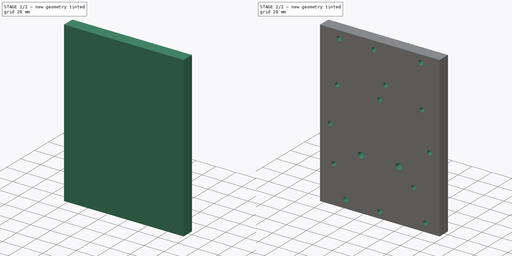
[diagram: build sequence overview — one tinted view per stage of 2, left to right]
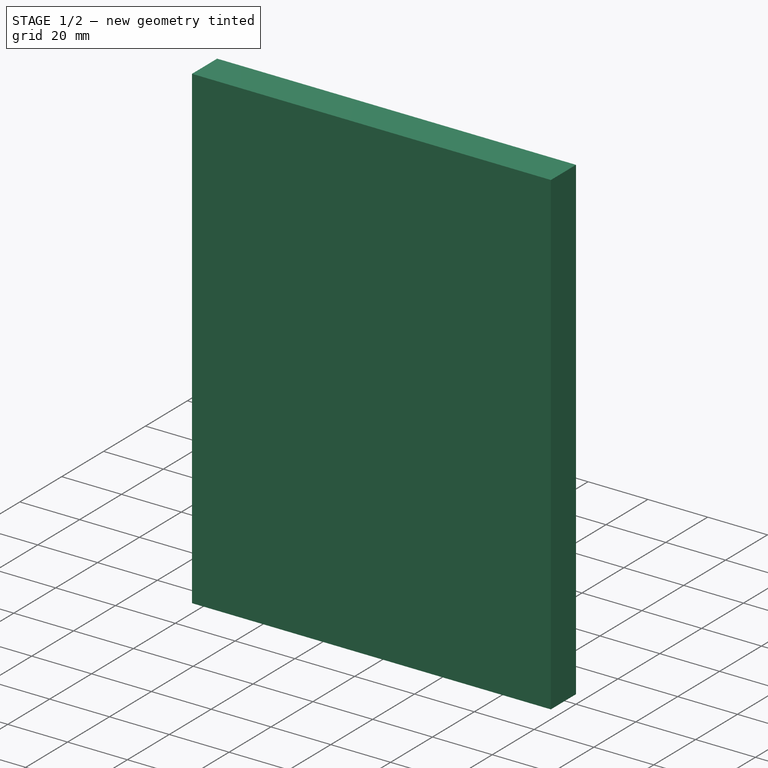
[diagram: stage 1 of 2 — iso view after this stage's code; geometry added in this stage tinted green]
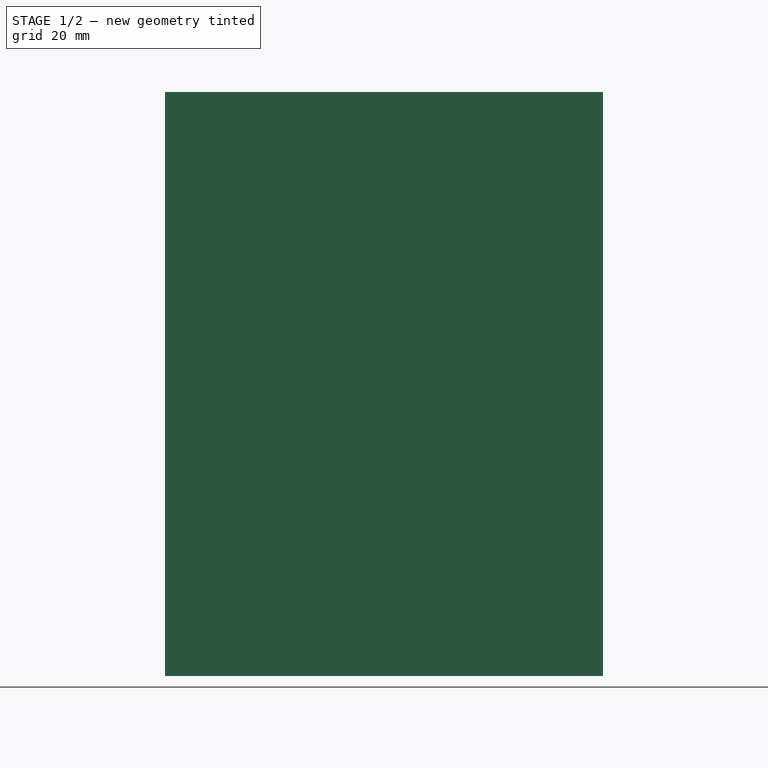
[diagram: stage 1 of 2 — front view after this stage's code; geometry added in this stage tinted green]
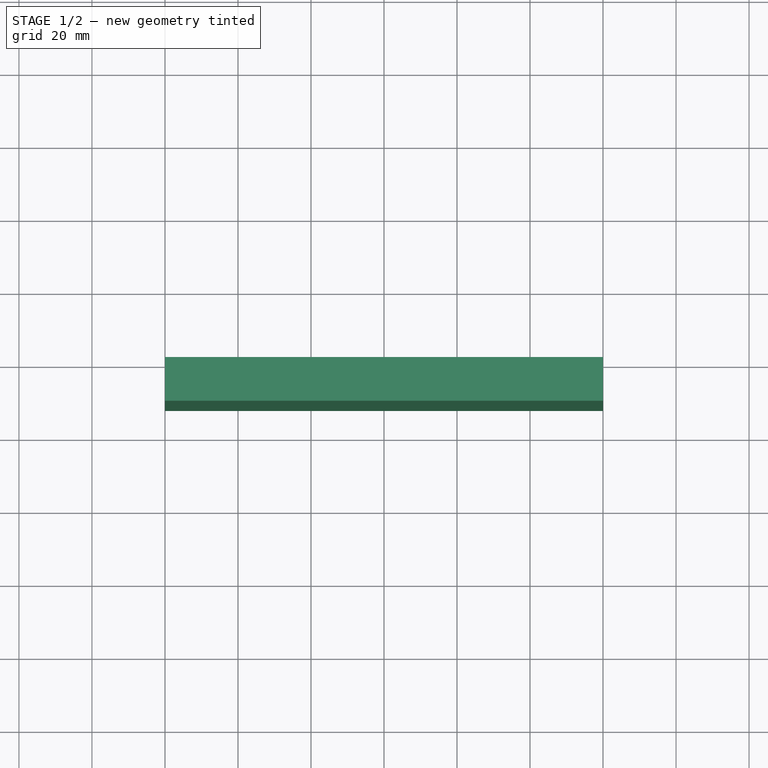
[diagram: stage 1 of 2 — top view after this stage's code; geometry added in this stage tinted green]
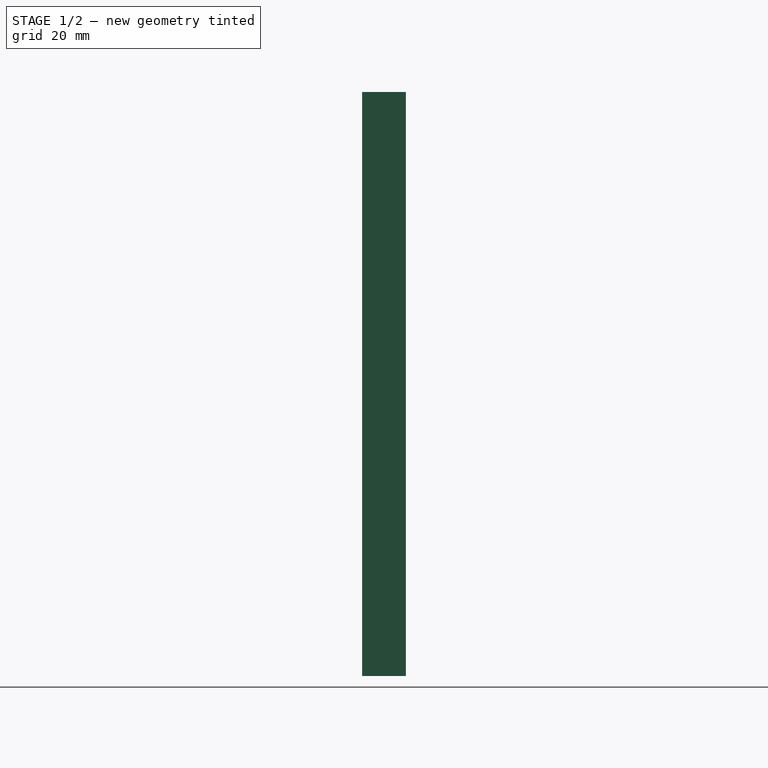
[diagram: stage 1 of 2 — right view after this stage's code; geometry added in this stage tinted green]
FCSTD DOCUMENT  (FreeCAD 0.15R4671 (Git))
Label: Tisch X-Achse - Rueckwand
License: All rights reserved
LicenseURL: http://de.wikipedia.org/wiki/Alle_Rechte_vorbehalten
objects: Drawing::FeatureView×24, Sketcher::SketchObject×2, Drawing::FeatureViewPart×2, Drawing::FeaturePage×2, PartDesign::Pad×1, PartDesign::Pocket×1
note: 6 computed .brp shape members not serialized (recipe doc carries the construction recipe); baked Part::Feature solids carry a one-line shape summary decoded from their .brp

FEATURE [Sketcher::SketchObject] Sketch
  Placement = pos=(0,0,0) rot=(1,0,0;1.5708rad)
  sketch-geometry (4):
    g0: LineSegment StartX=-60 StartY=160 StartZ=0 EndX=60 EndY=160 EndZ=0
    g1: LineSegment StartX=60 StartY=160 StartZ=0 EndX=60 EndY=0 EndZ=0
    g2: LineSegment StartX=60 StartY=0 StartZ=0 EndX=-60 EndY=0 EndZ=0
    g3: LineSegment StartX=-60 StartY=0 StartZ=0 EndX=-60 EndY=160 EndZ=0
  constraints (12):
    c: Coincident(g0,g1)
    c: Coincident(g1,g2)
    c: Coincident(g2,g3)
    c: Coincident(g3,g0)
    c: Horizontal(g0)
    c: Horizontal(g2)
    c: Vertical(g1)
    c: Vertical(g3)
    c: Symmetric(g0,g0,g-2)
    c: DistanceY(g1) = -160
    c: DistanceX(g0) = 120
    c: PointOnObject(g-1,g2)
FEATURE [PartDesign::Pad] Pad
  Length = 12
  Length2 = 100
  Placement = pos=(0,0,0) rot=(1,0,0;1.5708rad)
  Sketch = -> Sketch
  Type = 0
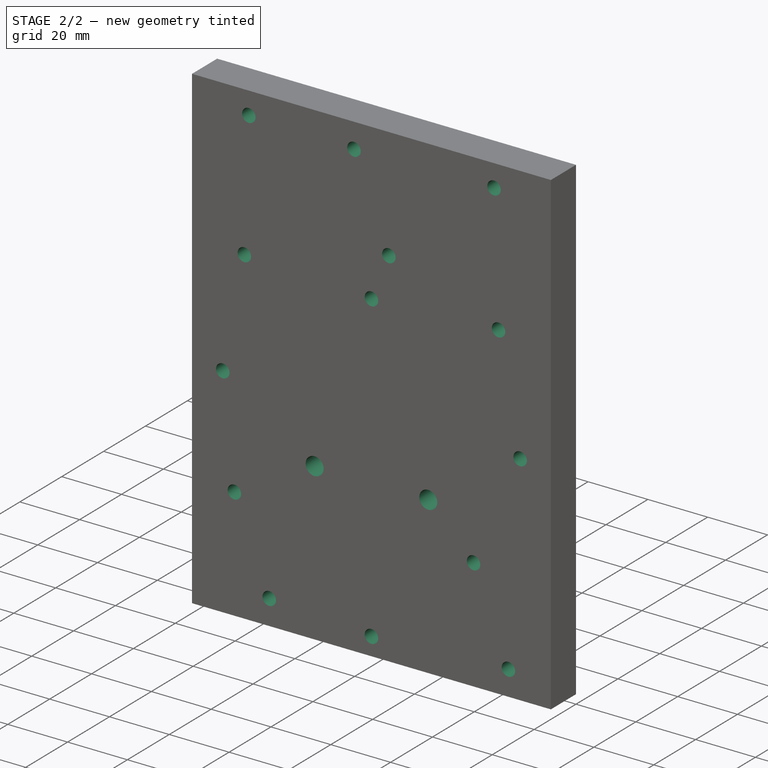
[diagram: stage 2 of 2 — iso view after this stage's code; geometry added in this stage tinted green]
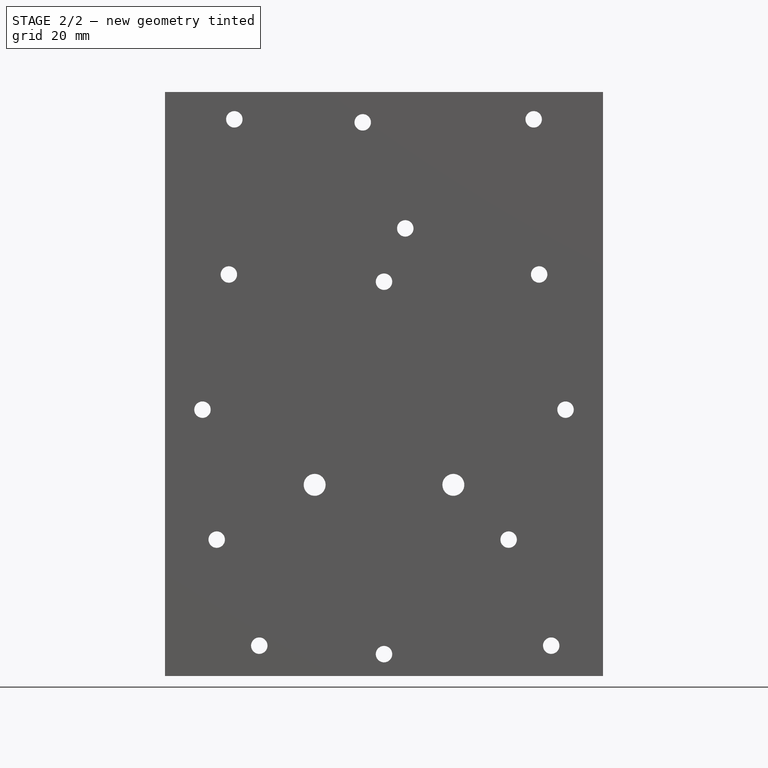
[diagram: stage 2 of 2 — front view after this stage's code; geometry added in this stage tinted green]
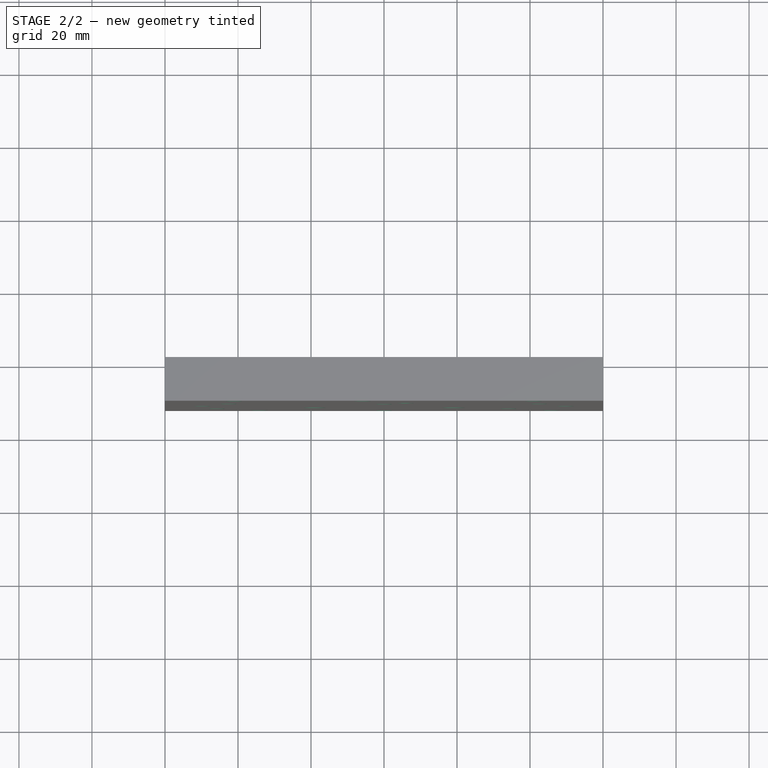
[diagram: stage 2 of 2 — top view after this stage's code; geometry added in this stage tinted green]
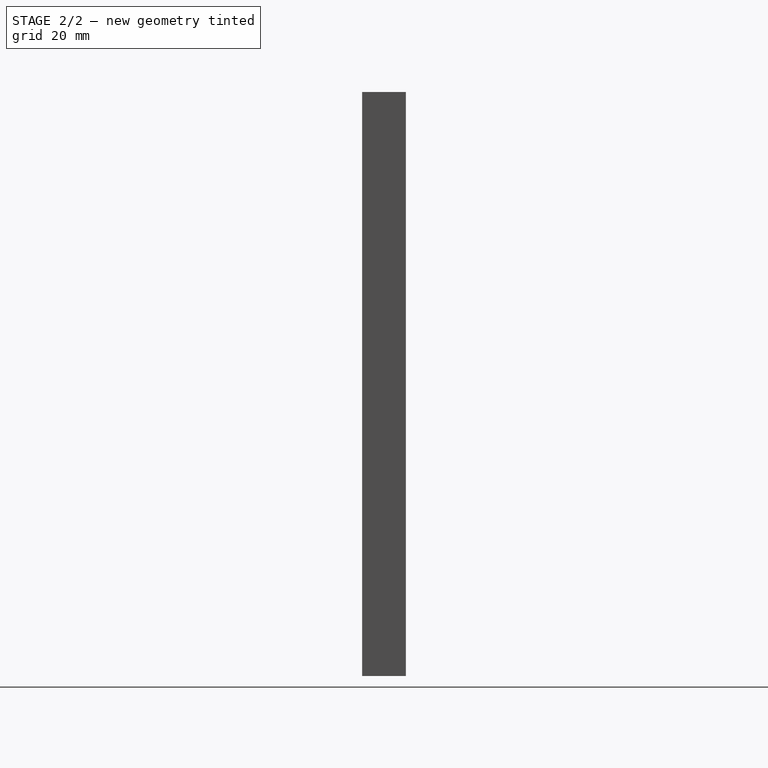
[diagram: stage 2 of 2 — right view after this stage's code; geometry added in this stage tinted green]
FEATURE [Sketcher::SketchObject] Sketch001
  ExternalGeometry = -> [Pad]
  Placement = pos=(0,-12,0) rot=(1,0,0;1.5708rad)
  Support = -> Pad [Face6]
  sketch-geometry (25):
    g0: LineSegment [constr] StartX=-45.83 StartY=37.375 StartZ=0 EndX=34.144 EndY=37.375 EndZ=0
    g1: LineSegment [constr] StartX=34.144 StartY=37.375 StartZ=0 EndX=45.804 EndY=8.325 EndZ=0
    g2: LineSegment [constr] StartX=45.804 StartY=8.325 StartZ=0 EndX=-34.17 EndY=8.325 EndZ=0
    g3: LineSegment [constr] StartX=-34.17 StartY=8.325 StartZ=0 EndX=-45.83 EndY=37.375 EndZ=0
    g4: Circle CenterX=-45.83 CenterY=37.375 CenterZ=0 NormalX=0 NormalY=0 NormalZ=1 Radius=2.25
    g5: Circle CenterX=-34.17 CenterY=8.325 CenterZ=0 NormalX=0 NormalY=0 NormalZ=1 Radius=2.25
    g6: Circle CenterX=34.144 CenterY=37.375 CenterZ=0 NormalX=0 NormalY=0 NormalZ=1 Radius=2.25
    g7: Circle CenterX=45.804 CenterY=8.325 CenterZ=0 NormalX=0 NormalY=0 NormalZ=1 Radius=2.25
    g8: Circle CenterX=-5.83 CenterY=151.675 CenterZ=0 NormalX=0 NormalY=0 NormalZ=1 Radius=2.25
    g9: Circle CenterX=5.83 CenterY=122.625 CenterZ=0 NormalX=0 NormalY=0 NormalZ=1 Radius=2.25
    g10: Circle CenterX=-49.725 CenterY=72.97 CenterZ=0 NormalX=0 NormalY=0 NormalZ=1 Radius=2.25
    g11: Circle CenterX=49.725 CenterY=72.97 CenterZ=0 NormalX=0 NormalY=0 NormalZ=1 Radius=2.25
    g12: Circle CenterX=0 CenterY=108.025 CenterZ=0 NormalX=0 NormalY=0 NormalZ=1 Radius=2.25
    g13: LineSegment [constr] StartX=-5.83 StartY=151.675 StartZ=0 EndX=5.83 EndY=122.625 EndZ=0
    g14: Circle CenterX=-19 CenterY=52.375 CenterZ=0 NormalX=0 NormalY=0 NormalZ=1 Radius=3
    g15: Circle CenterX=19 CenterY=52.375 CenterZ=0 NormalX=0 NormalY=0 NormalZ=1 Radius=3
    g16: Circle CenterX=0 CenterY=6 CenterZ=0 NormalX=0 NormalY=0 NormalZ=1 Radius=2.25
    g17: Circle CenterX=-41 CenterY=152.5 CenterZ=0 NormalX=0 NormalY=0 NormalZ=1 Radius=2.25
    g18: Circle CenterX=41 CenterY=152.5 CenterZ=0 NormalX=0 NormalY=0 NormalZ=1 Radius=2.25
    g19: LineSegment [constr] StartX=-60 StartY=152.5 StartZ=0 EndX=-41 EndY=152.5 EndZ=0
    g20: LineSegment [constr] StartX=-41 StartY=152.5 StartZ=0 EndX=41 EndY=152.5 EndZ=0
    g21: LineSegment [constr] StartX=41 StartY=152.5 StartZ=0 EndX=60 EndY=152.5 EndZ=0
    g22: LineSegment [constr] StartX=-42.5 StartY=110 StartZ=0 EndX=42.5 EndY=110 EndZ=0
    g23: Circle CenterX=-42.5 CenterY=110 CenterZ=0 NormalX=0 NormalY=0 NormalZ=1 Radius=2.25
    g24: Circle CenterX=42.5 CenterY=110 CenterZ=0 NormalX=0 NormalY=0 NormalZ=1 Radius=2.25
  constraints (65):
    c: Coincident(g0,g1)
    c: Coincident(g1,g2)
    c: Coincident(g2,g3)
    c: Coincident(g3,g0)
    c: Horizontal(g0)
    c: Horizontal(g2)
    c: DistanceY(g-3,g2) = 8.325
    c: DistanceX(g-3,g1) = 105.804
    c: DistanceY(g-3,g0) = 37.375
    c: Coincident(g4,g0)
    c: Coincident(g7,g1)
    c: Radius(g5) = 2.25
    c: Equal(g5,g4)
    c: Equal(g5,g10)
    c: Equal(g5,g8)
    c: Equal(g5,g9)
    c: Equal(g5,g11)
    c: Equal(g5,g12)
    c: Equal(g5,g6)
    c: Equal(g5,g7)
    c: DistanceX(g-3,g0) = 14.17
    c: Parallel(g1,g3)
    c: Coincident(g5,g2)
    c: Coincident(g6,g0)
    c: DistanceX(g2,g-3) = -25.83
    c: Coincident(g13,g8)
    c: Coincident(g13,g9)
    c: Equal(g13,g1)
    c: Parallel(g13,g1)
    c: DistanceY(g-3,g8) = 151.675
    c: DistanceX(g-3,g8) = 54.17
    c: Symmetric(g10,g11,g-2)
    c: PointOnObject(g12,g-2)
    c: DistanceY(g-3,g12) = 108.025
    c: DistanceX(g12,g10) = -49.725
    c: DistanceY(g10,g12) = 35.055
    c: Symmetric(g14,g15,g-2)
    c: Radius(g14) = 3
    c: Equal(g14,g15)
    c: DistanceX(g14,g15) = 38
    c: DistanceY(g14,g0) = -15
    c: PointOnObject(g16,g-2)
    c: DistanceY(g-1,g16) = 6
    c: Equal(g5,g16)
    c: PointOnObject(g19,g-3)
    c: Coincident(g19,g17)
    c: Horizontal(g19)
    c: Coincident(g19,g20)
    c: Coincident(g20,g18)
    c: Coincident(g20,g21)
    c: Horizontal(g21)
    c: Equal(g19,g21)
    c: Horizontal(g20)
    c: PointOnObject(g21,g-4)
    c: DistanceX(g19) = 19
    c: Equal(g10,g17)
    c: Equal(g17,g18)
    c: DistanceY(g-3,g19) = -7.5
    c: Symmetric(g22,g22,g-2)
    c: DistanceX(g-3,g22) = 17.5
    c: DistanceY(g-3,g22) = -50
    c: Coincident(g23,g22)
    c: Coincident(g24,g22)
    c: Equal(g10,g23)
    c: Equal(g23,g24)
FEATURE [PartDesign::Pocket] Pocket
  Length = 5
  Placement = pos=(0,0,0) rot=(1,0,0;1.5708rad)
  Sketch = -> Sketch001
  Type = 1
FEATURE [Drawing::FeatureViewPart] Ortho  label="Ortho_0_0"
  Direction = (0,-1,0)
  HiddenWidth = 0.15
  LineWidth = 0.35
  Rotation = 90
  ShowHiddenLines = false
  ShowSmoothLines = false
  Source = -> Pocket
  Tolerance = 0.05
  ViewResult = <g id="Ortho_0_0"\n   transform="rotate(90,148.5,185) translate(148.5,185) scale(1,1)"\n  >\n<g   stroke="rgb(0, 0, 0)"\n   stroke-width="0.35"\n   stroke-linecap="butt"\n   stroke-linejoin="miter"\n   fill="none"\n   transform="scale(1,-1)"\n  >\n<path id= "1" d=" M -160 -60 L -160 60 " />\n<path id= "2" d=" M -9.32587e-015 -60 L -160 -60 " />\n<path id= "3" d=" M -160 60 L 2.84217e-014 60 " />\n<path id= "4" d=" M -9.32587e-015 60 L -9.32587e-015 -60 " />\n<circle cx ="-37.375" cy ="-45.83" r ="2.25" /><circle cx ="-52.375" cy ="-19" r ="3" /><circle cx ="-72.97" cy ="-49.725" r ="2.25" /><circle cx ="-110" cy ="-42.5" r ="2.25" /><circle cx ="-110" cy ="42.5" r ="2.25" /><circle cx ="-52.375" cy ="19" r ="3" /><circle cx ="-108.025" cy ="0" r ="2.25" /><circle cx ="-37.375" cy ="34.144" r ="2.25" /><circle cx ="-152.5" cy ="41" r ="2.25" /><circle cx ="-152.5" cy ="-41" r ="2.25" /><circle cx ="-151.675" cy ="-5.83" r ="2.25" /><circle cx ="-122.625" cy ="5.83" r ="2.25" /><circle cx ="-72.97" cy ="49.725" r ="2.25" /><circle cx ="-8.325" cy ="-34.17" r ="2.25" /><circle cx ="-6" cy ="0" r ="2.25" /><circle cx ="-8.325" cy ="45.804" r ="2.25" /></g>\n</g>
  Visible = true
  X = 148.5
  Y = 185
FEATURE [Drawing::FeatureView] centerLines001
  Rotation = 0
  ViewResult = <g transform="scale(1.000000,1.000000)" stroke="rgb(0,0,255)"  stroke-width="0.320000" > <path d="M 142.670000,33.325000 L 142.670000,30.325000 M 142.670000,28.325000 L 142.670000,22.633304 "/>\n<path d="M 142.670000,33.325000 L 145.670000,33.325000 M 147.670000,33.325000 L 150.888696,33.325000 "/>\n<path d="M 142.670000,33.325000 L 142.670000,36.325000 M 142.670000,38.325000 L 142.670000,44.325000 "/>\n<path d="M 142.670000,33.325000 L 139.670000,33.325000 M 137.670000,33.325000 L 135.171123,33.325000 "/> </g> 
  Visible = true
  X = 0
  Y = 0
FEATURE [Drawing::FeatureView] centerLines002
  Rotation = 0
  ViewResult = <g transform="scale(1.000000,1.000000)" stroke="rgb(0,0,255)"  stroke-width="0.320000" > <path d="M 154.330000,62.375000 L 154.330000,59.375000 M 154.330000,57.375000 L 154.330000,52.811044 "/>\n<path d="M 154.330000,62.375000 L 157.330000,62.375000 M 159.330000,62.375000 L 161.262294,62.375000 "/>\n<path d="M 154.330000,62.375000 L 154.330000,65.375000 M 154.330000,67.375000 L 154.330000,69.471670 "/>\n<path d="M 154.330000,62.375000 L 151.330000,62.375000 M 149.330000,62.375000 L 146.487776,62.375000 "/> </g> 
  Visible = true
  X = 0
  Y = 0
FEATURE [Drawing::FeatureView] centerLines003
  Rotation = 0
  ViewResult = <g transform="scale(1.000000,1.000000)" stroke="rgb(0,0,255)"  stroke-width="0.320000" > <path d="M 148.500000,76.975000 L 148.500000,73.975000 "/>\n<path d="M 148.500000,76.975000 L 151.500000,76.975000 M 153.500000,76.975000 L 159.376185,76.975000 "/>\n<path d="M 148.500000,76.975000 L 148.500000,79.975000 "/>\n<path d="M 148.500000,76.975000 L 145.500000,76.975000 M 143.500000,76.975000 L 141.772504,76.975000 "/> </g> 
  Visible = true
  X = 0
  Y = 0
FEATURE [Drawing::FeatureView] centerLines004
  Rotation = 0
  ViewResult = <g transform="scale(1.000000,1.000000)" stroke="rgb(0,0,255)"  stroke-width="0.320000" > <path d="M 98.775000,112.030000 L 98.775000,109.030000 M 98.775000,107.030000 L 98.775000,101.030000 "/>\n<path d="M 98.775000,112.030000 L 101.775000,112.030000 M 103.775000,112.030000 L 109.775000,112.030000 "/>\n<path d="M 98.775000,112.030000 L 98.775000,115.030000 M 98.775000,117.030000 L 98.775000,123.030000 "/>\n<path d="M 98.775000,112.030000 L 95.775000,112.030000 M 93.775000,112.030000 L 92.733678,112.030000 "/> </g> 
  Visible = true
  X = 0
  Y = 0
FEATURE [Drawing::FeatureView] centerLines005
  Rotation = 0
  ViewResult = <g transform="scale(1.000000,1.000000)" stroke="rgb(0,0,255)"  stroke-width="0.320000" > <path d="M 102.670000,147.625000 L 102.670000,144.625000 M 102.670000,142.625000 L 102.670000,136.625000 "/>\n<path d="M 102.670000,147.625000 L 105.670000,147.625000 M 107.670000,147.625000 L 113.670000,147.625000 "/>\n<path d="M 102.670000,147.625000 L 102.670000,150.625000 M 102.670000,152.625000 L 102.670000,154.346562 "/>\n<path d="M 102.670000,147.625000 L 99.670000,147.625000 M 97.670000,147.625000 L 93.048029,147.625000 "/> </g> 
  Visible = true
  X = 0
  Y = 0
FEATURE [Drawing::FeatureView] centerLines006
  Rotation = 0
  ViewResult = <g transform="scale(1.000000,1.000000)" stroke="rgb(0,0,255)"  stroke-width="0.320000" > <path d="M 114.330000,176.675000 L 114.330000,173.675000 M 114.330000,171.675000 L 114.330000,165.675000 M 114.330000,163.675000 L 114.330000,163.462754 "/>\n<path d="M 114.330000,176.675000 L 117.330000,176.675000 M 119.330000,176.675000 L 125.330000,176.675000 M 127.330000,176.675000 L 127.941040,176.675000 "/>\n<path d="M 114.330000,176.675000 L 114.330000,179.675000 M 114.330000,181.675000 L 114.330000,184.838653 "/>\n<path d="M 114.330000,176.675000 L 111.330000,176.675000 M 109.330000,176.675000 L 103.735978,176.675000 "/> </g> 
  Visible = true
  X = 0
  Y = 0
FEATURE [Drawing::FeatureView] centerLines007
  Rotation = 0
  ViewResult = <g transform="scale(1.000000,1.000000)" stroke="rgb(0,0,255)"  stroke-width="0.320000" > <path d="M 129.500000,132.625000 L 129.500000,129.625000 M 129.500000,127.625000 L 129.500000,121.625000 M 129.500000,119.625000 L 129.500000,117.253091 "/>\n<path d="M 129.500000,132.625000 L 132.500000,132.625000 M 134.500000,132.625000 L 140.500000,132.625000 M 142.500000,132.625000 L 145.500000,132.625000 "/>\n<path d="M 129.500000,132.625000 L 129.500000,135.625000 M 129.500000,137.625000 L 129.500000,140.200747 "/>\n<path d="M 129.500000,132.625000 L 126.500000,132.625000 M 124.500000,132.625000 L 118.500000,132.625000 M 116.500000,132.625000 L 115.995685,132.625000 "/> </g> 
  Visible = true
  X = 0
  Y = 0
FEATURE [Drawing::FeatureView] centerLines008
  Rotation = 0
  ViewResult = <g transform="scale(1.000000,1.000000)" stroke="rgb(0,0,255)"  stroke-width="0.320000" > <path d="M 167.500000,132.625000 L 167.500000,129.625000 M 167.500000,127.625000 L 167.500000,121.625000 M 167.500000,119.625000 L 167.500000,116.625000 "/>\n<path d="M 167.500000,132.625000 L 170.500000,132.625000 M 172.500000,132.625000 L 178.500000,132.625000 M 180.500000,132.625000 L 183.500000,132.625000 M 185.500000,132.625000 L 189.868276,132.625000 "/>\n<path d="M 167.500000,132.625000 L 167.500000,135.625000 M 167.500000,137.625000 L 167.500000,143.625000 "/>\n<path d="M 167.500000,132.625000 L 164.500000,132.625000 M 162.500000,132.625000 L 156.500000,132.625000 "/> </g> 
  Visible = true
  X = 0
  Y = 0
FEATURE [Drawing::FeatureView] centerLines009
  Rotation = 0
  ViewResult = <g transform="scale(1.000000,1.000000)" stroke="rgb(0,0,255)"  stroke-width="0.320000" > <path d="M 182.644000,147.625000 L 182.644000,144.625000 M 182.644000,142.625000 L 182.644000,137.371584 "/>\n<path d="M 182.644000,147.625000 L 185.644000,147.625000 M 187.644000,147.625000 L 192.068736,147.625000 "/>\n<path d="M 182.644000,147.625000 L 182.644000,150.625000 M 182.644000,152.625000 L 182.644000,157.490076 "/>\n<path d="M 182.644000,147.625000 L 179.644000,147.625000 M 177.644000,147.625000 L 171.644000,147.625000 M 169.644000,147.625000 L 166.644000,147.625000 M 164.644000,147.625000 L 162.519700,147.625000 "/> </g> 
  Visible = true
  X = 0
  Y = 0
FEATURE [Drawing::FeatureView] centerLines010
  Rotation = 0
  ViewResult = <g transform="scale(1.000000,1.000000)" stroke="rgb(0,0,255)"  stroke-width="0.320000" > <path d="M 198.225000,112.030000 L 198.225000,109.030000 M 198.225000,107.030000 L 198.225000,101.030000 M 198.225000,99.030000 L 198.225000,97.763301 "/>\n<path d="M 198.225000,112.030000 L 201.225000,112.030000 M 203.225000,112.030000 L 209.225000,112.030000 "/>\n<path d="M 198.225000,112.030000 L 198.225000,115.030000 M 198.225000,117.030000 L 198.225000,123.030000 M 198.225000,125.030000 L 198.225000,128.030000 M 198.225000,130.030000 L 198.225000,131.398906 "/>\n<path d="M 198.225000,112.030000 L 195.225000,112.030000 M 193.225000,112.030000 L 187.225000,112.030000 M 185.225000,112.030000 L 182.225000,112.030000 "/> </g> 
  Visible = true
  X = 0
  Y = 0
FEATURE [Drawing::FeatureView] centerLines011
  Rotation = 0
  ViewResult = <g transform="scale(1.000000,1.000000)" stroke="rgb(0,0,255)"  stroke-width="0.320000" > <path d="M 194.304000,176.675000 L 194.304000,173.675000 M 194.304000,171.675000 L 194.304000,167.863674 "/>\n<path d="M 194.304000,176.675000 L 197.304000,176.675000 M 199.304000,176.675000 L 205.271497,176.675000 "/>\n<path d="M 194.304000,176.675000 L 194.304000,179.675000 M 194.304000,181.675000 L 194.304000,182.952544 "/>\n<path d="M 194.304000,176.675000 L 191.304000,176.675000 M 189.304000,176.675000 L 183.304000,176.675000 M 181.304000,176.675000 L 178.304000,176.675000 "/> </g> 
  Visible = true
  X = 0
  Y = 0
FEATURE [Drawing::FeatureView] dim001
  Rotation = 0
  ViewResult = <g>  <circle cx ="148.500000" cy ="76.975000" r="0.250000" stroke="none" fill="rgb(0,0,255)" /> \n<line x1="132.656312" y1="65.070750" x2="150.298829" y2="78.326561" style="stroke:rgb(0,0,255);stroke-width:0.50" />\n<polygon points="146.701171,75.623439 144.903427,73.021879 143.503254,73.220665 143.702040,74.620838" style="fill:rgb(0,0,255);stroke:rgb(0,0,255);stroke-width:0" />\n<polygon points="150.298829,78.326561 152.096573,80.928121 153.496746,80.729335 153.297960,79.329162" style="fill:rgb(0,0,255);stroke:rgb(0,0,255);stroke-width:0" />\n<line x1="132.656312" y1="65.070750" x2="121.968363" y2="65.070750" style="stroke:rgb(0,0,255);stroke-width:0.50" />\n<text x="127.312337" y="63.070750" font-family="inherit" font-size="3.6" fill="rgb(0,0,255)" text-anchor="middle" transform="rotate(0.000000 127.312337,63.070750)" >Ø4.5</text> </g>
  Visible = true
  X = 0
  Y = 0
FEATURE [Drawing::FeatureView] dim002
  Rotation = 0
  ViewResult = <g>  <circle cx ="129.500000" cy ="132.625000" r="0.250000" stroke="none" fill="rgb(0,0,255)" /> \n<line x1="121.654011" y1="123.540120" x2="131.460853" y2="134.895474" style="stroke:rgb(0,0,255);stroke-width:0.50" />\n<polygon points="127.539147,130.354526 126.335118,127.430433 124.924676,127.327226 124.821469,128.737669" style="fill:rgb(0,0,255);stroke:rgb(0,0,255);stroke-width:0" />\n<polygon points="131.460853,134.895474 132.664882,137.819567 134.075324,137.922774 134.178531,136.512331" style="fill:rgb(0,0,255);stroke:rgb(0,0,255);stroke-width:0" />\n<line x1="121.654011" y1="123.540120" x2="112.537819" y2="123.540120" style="stroke:rgb(0,0,255);stroke-width:0.50" />\n<text x="117.095915" y="121.540120" font-family="inherit" font-size="3.6" fill="rgb(0,0,255)" text-anchor="middle" transform="rotate(0.000000 117.095915,121.540120)" >Ø6</text> </g>
  Visible = true
  X = 0
  Y = 0
FEATURE [Drawing::FeatureView] dim003
  Rotation = 0
  ViewResult = <g> \n  <line x1="88.500000" y1="23.000000" x2="88.500000" y2="10.927553" style="stroke:rgb(0,0,255);stroke-width:0.50" />\n<line x1="208.500000" y1="23.000000" x2="208.500000" y2="10.927553" style="stroke:rgb(0,0,255);stroke-width:0.50" />\n<line x1="88.500000" y1="11.927553" x2="208.500000" y2="11.927553" style="stroke:rgb(0,0,255);stroke-width:0.50" /> \n  <polygon points="208.500000,11.927553 205.500000,10.927553 204.500000,11.927553 205.500000,12.927553" style="fill:rgb(0,0,255);stroke:rgb(0,0,255);stroke-width:0" /><polygon points="88.500000,11.927553 91.500000,12.927553 92.500000,11.927553 91.500000,10.927553" style="fill:rgb(0,0,255);stroke:rgb(0,0,255);stroke-width:0" /> \n  <text x="148.500000" y="9.927553" font-family="inherit" font-size="3.6" fill="rgb(0,0,255)" text-anchor="middle" transform="rotate(0.000000 148.500000,9.927553)" >120</text> </g>
  Visible = true
  X = 0
  Y = 0
FEATURE [Drawing::FeatureView] dim004
  Rotation = 0
  ViewResult = <g> \n  <line x1="210.500000" y1="25.000000" x2="223.229141" y2="25.000000" style="stroke:rgb(0,0,255);stroke-width:0.50" />\n<line x1="210.500000" y1="185.000000" x2="223.229141" y2="185.000000" style="stroke:rgb(0,0,255);stroke-width:0.50" />\n<line x1="222.229141" y1="25.000000" x2="222.229141" y2="185.000000" style="stroke:rgb(0,0,255);stroke-width:0.50" /> \n  <polygon points="222.229141,185.000000 223.229141,182.000000 222.229141,181.000000 221.229141,182.000000" style="fill:rgb(0,0,255);stroke:rgb(0,0,255);stroke-width:0" /><polygon points="222.229141,25.000000 221.229141,28.000000 222.229141,29.000000 223.229141,28.000000" style="fill:rgb(0,0,255);stroke:rgb(0,0,255);stroke-width:0" /> \n  <text x="220.229141" y="105.000000" font-family="inherit" font-size="3.6" fill="rgb(0,0,255)" text-anchor="middle" transform="rotate(-90.000000 220.229141,105.000000)" >160</text> </g>
  Visible = true
  X = 0
  Y = 0
FEATURE [Drawing::FeatureView] dim005
  Rotation = 0
  ViewResult = <g> \n  <line x1="86.500000" y1="25.000000" x2="56.126700" y2="25.000000" style="stroke:rgb(0,0,255);stroke-width:0.50" />\n<line x1="90.733678" y1="112.030000" x2="56.126700" y2="112.030000" style="stroke:rgb(0,0,255);stroke-width:0.50" />\n<line x1="57.126700" y1="25.000000" x2="57.126700" y2="112.030000" style="stroke:rgb(0,0,255);stroke-width:0.50" /> \n  <polygon points="57.126700,112.030000 58.126700,109.030000 57.126700,108.030000 56.126700,109.030000" style="fill:rgb(0,0,255);stroke:rgb(0,0,255);stroke-width:0" /><polygon points="57.126700,25.000000 56.126700,28.000000 57.126700,29.000000 58.126700,28.000000" style="fill:rgb(0,0,255);stroke:rgb(0,0,255);stroke-width:0" /> \n  <text x="55.126700" y="68.515000" font-family="inherit" font-size="3.6" fill="rgb(0,0,255)" text-anchor="middle" transform="rotate(-90.000000 55.126700,68.515000)" >87.03</text> </g>
  Visible = true
  X = 0
  Y = 0
FEATURE [Drawing::FeatureView] dim006
  Rotation = 0
  ViewResult = <g> \n  <line x1="98.775000" y1="99.030000" x2="98.775000" y2="60.207179" style="stroke:rgb(0,0,255);stroke-width:0.50" />\n<line x1="88.500000" y1="27.000000" x2="88.500000" y2="62.207179" style="stroke:rgb(0,0,255);stroke-width:0.50" />\n<line x1="98.775000" y1="61.207179" x2="88.500000" y2="61.207179" style="stroke:rgb(0,0,255);stroke-width:0.50" /> \n  <polygon points="88.500000,61.207179 91.500000,62.207179 92.500000,61.207179 91.500000,60.207179" style="fill:rgb(0,0,255);stroke:rgb(0,0,255);stroke-width:0" /><polygon points="98.775000,61.207179 95.775000,60.207179 94.775000,61.207179 95.775000,62.207179" style="fill:rgb(0,0,255);stroke:rgb(0,0,255);stroke-width:0" /> \n  <text x="93.637500" y="59.207179" font-family="inherit" font-size="3.6" fill="rgb(0,0,255)" text-anchor="middle" transform="rotate(0.000000 93.637500,59.207179)" >10.275</text> </g>
  Visible = true
  X = 0
  Y = 0
FEATURE [Drawing::FeaturePage] Page
  Group = -> [Ortho,centerLines001,centerLines002,centerLines003,centerLines004,centerLines005,centerLines006,centerLines007,centerLines008,centerLines009,centerLines010,centerLines011,dim001,dim002,dim003,dim004,dim005,dim006]
  Template = C:/Program Files/FreeCAD 0.15/data/Mod/Drawing/Templates/A4_Landscape_plain.svg
FEATURE [Drawing::FeatureViewPart] Ortho001  label="Ortho_0_001"
  Direction = (0,1,0)
  HiddenWidth = 0.15
  LineWidth = 0.35
  Rotation = 90
  ShowHiddenLines = false
  ShowSmoothLines = false
  Source = -> Pocket
  Tolerance = 0.05
  ViewResult = <g id="Ortho_0_001"\n   transform="rotate(90,148.5,25) translate(148.5,25) scale(1,1)"\n  >\n<g   stroke="rgb(0, 0, 0)"\n   stroke-width="0.35"\n   stroke-linecap="butt"\n   stroke-linejoin="miter"\n   fill="none"\n   transform="scale(1,-1)"\n  >\n<path id= "1" d=" M 160 -60 L 160 60 " />\n<path id= "2" d=" M 0 -60 L 160 -60 " />\n<path id= "3" d=" M 160 60 L 0 60 " />\n<path id= "4" d=" M 0 60 L 0 -60 " />\n<circle cx ="122.625" cy ="5.83" r ="2.25" /><circle cx ="52.375" cy ="19" r ="3" /><circle cx ="110" cy ="42.5" r ="2.25" /><circle cx ="52.375" cy ="-19" r ="3" /><circle cx ="152.5" cy ="-41" r ="2.25" /><circle cx ="151.675" cy ="-5.83" r ="2.25" /><circle cx ="108.025" cy ="0" r ="2.25" /><circle cx ="110" cy ="-42.5" r ="2.25" /><circle cx ="152.5" cy ="41" r ="2.25" /><circle cx ="8.325" cy ="-34.17" r ="2.25" /><circle cx ="6" cy ="0" r ="2.25" /><circle cx ="37.375" cy ="34.144" r ="2.25" /><circle cx ="8.325" cy ="45.804" r ="2.25" /><circle cx ="72.97" cy ="49.725" r ="2.25" /><circle cx ="37.375" cy ="-45.83" r ="2.25" /><circle cx ="72.97" cy ="-49.725" r ="2.25" /></g>\n</g>
  Visible = true
  X = 148.5
  Y = 25
FEATURE [Drawing::FeatureView] centerLines012
  Rotation = 0
  ViewResult = <g transform="scale(1.000000,1.000000)" stroke="rgb(0,0,255)"  stroke-width="0.320000" > <path d="M 88.500000,25.000000 L 85.500000,25.000000 M 83.500000,25.000000 L 77.500000,25.000000 M 75.500000,25.000000 L 72.500000,25.000000 M 70.500000,25.000000 L 64.500000,25.000000 M 62.500000,25.000000 L 59.500000,25.000000 M 57.500000,25.000000 L 51.500000,25.000000 M 49.500000,25.000000 L 46.500000,25.000000 M 44.500000,25.000000 L 38.500000,25.000000 M 36.500000,25.000000 L 33.500000,25.000000 M 31.500000,25.000000 L 31.435145,25.000000 "/>\n<path d="M 88.500000,25.000000 L 91.500000,25.000000 M 93.500000,25.000000 L 99.500000,25.000000 M 101.500000,25.000000 L 104.500000,25.000000 M 106.500000,25.000000 L 112.500000,25.000000 M 114.500000,25.000000 L 117.500000,25.000000 M 119.500000,25.000000 L 125.500000,25.000000 M 127.500000,25.000000 L 130.500000,25.000000 M 132.500000,25.000000 L 138.500000,25.000000 M 140.500000,25.000000 L 143.500000,25.000000 M 145.500000,25.000000 L 151.500000,25.000000 M 153.500000,25.000000 L 156.500000,25.000000 M 158.500000,25.000000 L 164.500000,25.000000 M 166.500000,25.000000 L 169.500000,25.000000 M 171.500000,25.000000 L 177.500000,25.000000 M 179.500000,25.000000 L 182.500000,25.000000 M 184.500000,25.000000 L 190.500000,25.000000 M 192.500000,25.000000 L 195.500000,25.000000 M 197.500000,25.000000 L 203.500000,25.000000 M 205.500000,25.000000 L 208.500000,25.000000 M 210.500000,25.000000 L 216.500000,25.000000 M 218.500000,25.000000 L 221.500000,25.000000 M 223.500000,25.000000 L 229.500000,25.000000 M 231.500000,25.000000 L 234.500000,25.000000 M 236.500000,25.000000 L 242.500000,25.000000 M 244.500000,25.000000 L 247.500000,25.000000 "/> </g> 
  Visible = true
  X = 0
  Y = 0
FEATURE [Drawing::FeatureView] centerLines013
  Rotation = 0
  ViewResult = <g transform="scale(1.000000,1.000000)" stroke="rgb(0,0,255)"  stroke-width="0.320000" > <path d="M 88.500000,185.000000 L 85.500000,185.000000 M 83.500000,185.000000 L 77.500000,185.000000 M 75.500000,185.000000 L 72.500000,185.000000 M 70.500000,185.000000 L 64.500000,185.000000 M 62.500000,185.000000 L 59.500000,185.000000 M 57.500000,185.000000 L 51.500000,185.000000 M 49.500000,185.000000 L 46.500000,185.000000 M 44.500000,185.000000 L 38.500000,185.000000 M 36.500000,185.000000 L 33.500000,185.000000 M 31.500000,185.000000 L 30.177739,185.000000 "/>\n<path d="M 88.500000,185.000000 L 91.500000,185.000000 M 93.500000,185.000000 L 99.500000,185.000000 M 101.500000,185.000000 L 104.500000,185.000000 M 106.500000,185.000000 L 112.500000,185.000000 M 114.500000,185.000000 L 117.500000,185.000000 M 119.500000,185.000000 L 125.500000,185.000000 M 127.500000,185.000000 L 130.500000,185.000000 M 132.500000,185.000000 L 138.500000,185.000000 M 140.500000,185.000000 L 143.500000,185.000000 M 145.500000,185.000000 L 151.500000,185.000000 M 153.500000,185.000000 L 156.500000,185.000000 M 158.500000,185.000000 L 164.500000,185.000000 M 166.500000,185.000000 L 169.500000,185.000000 M 171.500000,185.000000 L 177.500000,185.000000 M 179.500000,185.000000 L 182.500000,185.000000 M 184.500000,185.000000 L 190.500000,185.000000 M 192.500000,185.000000 L 195.500000,185.000000 M 197.500000,185.000000 L 203.500000,185.000000 M 205.500000,185.000000 L 208.500000,185.000000 M 210.500000,185.000000 L 216.500000,185.000000 M 218.500000,185.000000 L 221.500000,185.000000 M 223.500000,185.000000 L 229.500000,185.000000 M 231.500000,185.000000 L 234.500000,185.000000 M 236.500000,185.000000 L 242.500000,185.000000 M 244.500000,185.000000 L 247.500000,185.000000 M 249.500000,185.000000 L 251.795511,185.000000 "/> </g> 
  Visible = true
  X = 0
  Y = 0
FEATURE [Drawing::FeatureView] centerLines014
  Rotation = 0
  ViewResult = <g transform="scale(1.000000,1.000000)" stroke="rgb(0,0,255)"  stroke-width="0.320000" > <path d="M 148.500000,31.000000 L 148.500000,28.000000 M 148.500000,26.000000 L 148.500000,23.576359 "/>\n<path d="M 148.500000,31.000000 L 151.500000,31.000000 M 153.500000,31.000000 L 155.289616,31.000000 "/>\n<path d="M 148.500000,31.000000 L 148.500000,34.000000 M 148.500000,36.000000 L 148.500000,41.494391 "/>\n<path d="M 148.500000,31.000000 L 145.500000,31.000000 M 143.500000,31.000000 L 138.314638,31.000000 "/> </g> 
  Visible = true
  X = 0
  Y = 0
FEATURE [Drawing::FeatureView] centerLines015
  Rotation = 0
  ViewResult = <g transform="scale(1.000000,1.000000)" stroke="rgb(0,0,255)"  stroke-width="0.320000" > <path d="M 106.000000,135.000000 L 106.000000,132.000000 M 106.000000,130.000000 L 106.000000,126.683634 "/>\n<path d="M 106.000000,135.000000 L 109.000000,135.000000 M 111.000000,135.000000 L 112.852171,135.000000 "/>\n<path d="M 106.000000,135.000000 L 106.000000,138.000000 M 106.000000,140.000000 L 106.000000,143.658613 "/>\n<path d="M 106.000000,135.000000 L 103.000000,135.000000 M 101.000000,135.000000 L 96.191544,135.000000 "/> </g> 
  Visible = true
  X = 0
  Y = 0
FEATURE [Drawing::FeatureView] centerLines016
  Rotation = 0
  ViewResult = <g transform="scale(1.000000,1.000000)" stroke="rgb(0,0,255)"  stroke-width="0.320000" > <path d="M 191.000000,135.000000 L 191.000000,132.000000 M 191.000000,130.000000 L 191.000000,128.255392 "/>\n<path d="M 191.000000,135.000000 L 194.000000,135.000000 M 196.000000,135.000000 L 201.499279,135.000000 "/>\n<path d="M 191.000000,135.000000 L 191.000000,138.000000 M 191.000000,140.000000 L 191.000000,140.515098 "/>\n<path d="M 191.000000,135.000000 L 188.000000,135.000000 M 186.000000,135.000000 L 182.009490,135.000000 "/> </g> 
  Visible = true
  X = 0
  Y = 0
FEATURE [Drawing::FeatureView] centerLines017
  Rotation = 0
  ViewResult = <g transform="scale(1.000000,1.000000)" stroke="rgb(0,0,255)"  stroke-width="0.320000" > <path d="M 107.500000,177.500000 L 107.500000,174.500000 M 107.500000,172.500000 L 107.500000,168.492377 "/>\n<path d="M 107.500000,177.500000 L 110.500000,177.500000 M 112.500000,177.500000 L 115.995685,177.500000 "/>\n<path d="M 107.500000,177.500000 L 107.500000,180.500000 M 107.500000,182.500000 L 107.500000,183.266895 "/>\n<path d="M 107.500000,177.500000 L 104.500000,177.500000 M 102.500000,177.500000 L 101.535518,177.500000 "/> </g> 
  Visible = true
  X = 0
  Y = 0
FEATURE [Drawing::FeatureView] centerLines018
  Rotation = 0
  ViewResult = <g transform="scale(1.000000,1.000000)" stroke="rgb(0,0,255)"  stroke-width="0.320000" > <path d="M 189.500000,177.500000 L 189.500000,174.500000 M 189.500000,172.500000 L 189.500000,168.806729 "/>\n<path d="M 189.500000,177.500000 L 192.500000,177.500000 M 194.500000,177.500000 L 197.412711,177.500000 "/>\n<path d="M 189.500000,177.500000 L 189.500000,180.500000 M 189.500000,182.500000 L 189.500000,185.781707 "/>\n<path d="M 189.500000,177.500000 L 186.500000,177.500000 M 184.500000,177.500000 L 178.500000,177.500000 M 176.500000,177.500000 L 175.722461,177.500000 "/> </g> 
  Visible = true
  X = 0
  Y = 0
FEATURE [Drawing::FeaturePage] Page001
  Group = -> [Ortho001,centerLines012,centerLines013,centerLines014,centerLines015,centerLines016,centerLines017,centerLines018]
  Template = C:/Program Files/FreeCAD 0.15/data/Mod/Drawing/Templates/A4_Landscape_plain.svg
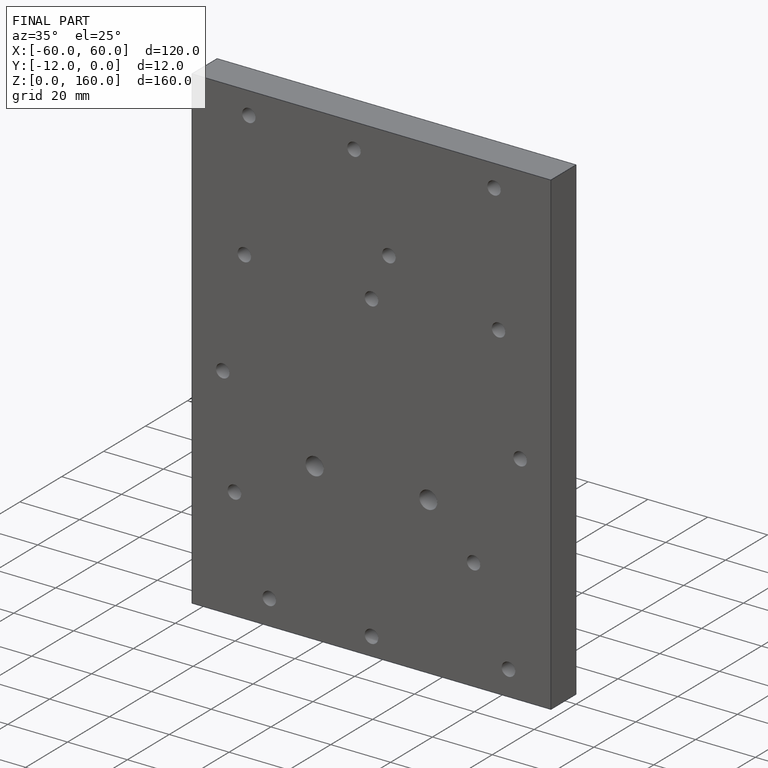
[diagram: finished part — iso view with bounding-box wireframe]
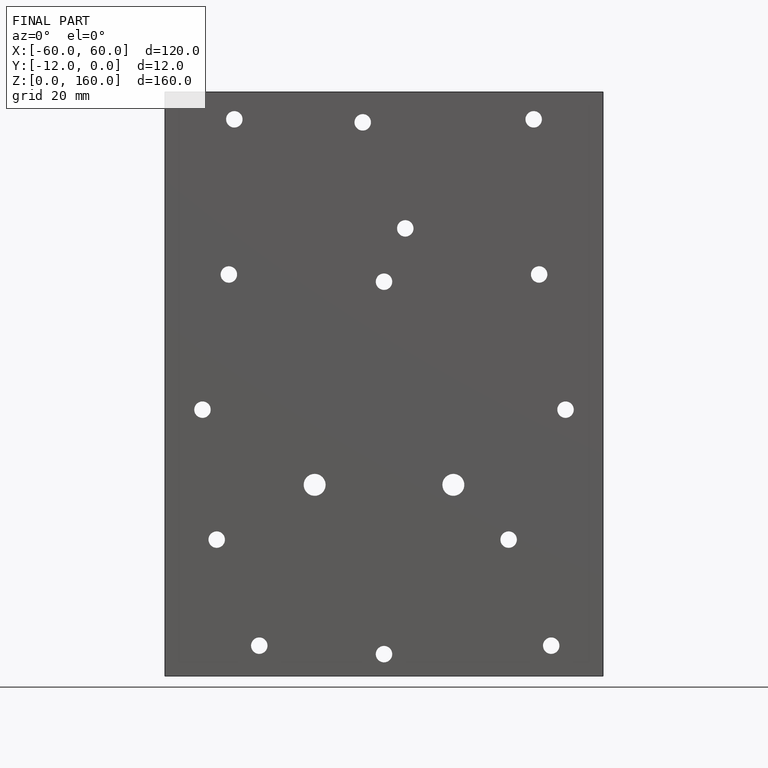
[diagram: finished part — front view with bounding-box wireframe]
